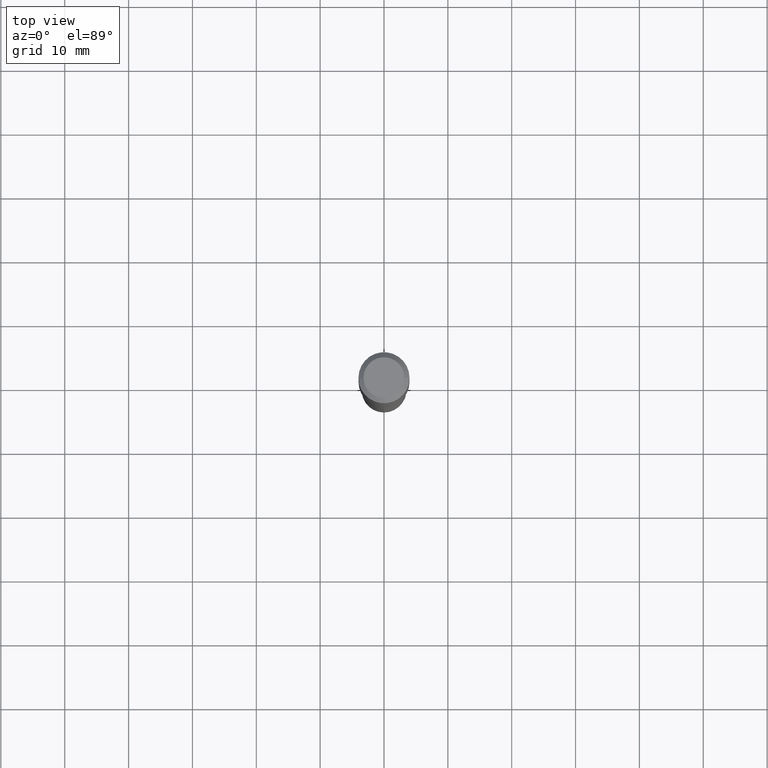
[diagram: clean part render]
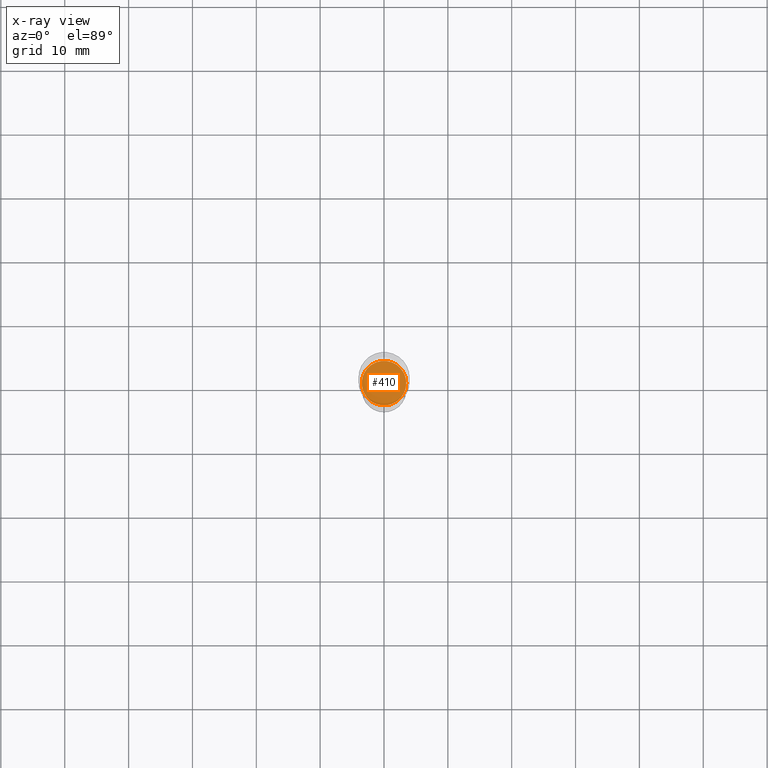
[diagram: x-ray — body ghosted, one internal face saturated and labeled with its STEP entity id]
A machine part, top view, then the same camera in x-ray: the body is ghosted and one INTERNAL B-rep face — a face not visible from any outside direction — is saturated and labeled: STEP entity #410.
In plain terms, the highlighted planar face has unit normal (-0, 0, 1).
Its self-contained STEP definition (entity closure, byte-faithful):
#51 = PLANE ( 'NONE',  #365 ) ;
#67 = CARTESIAN_POINT ( 'NONE',  ( 4.813905344975441835E-29, -6.872981015512731707E-15, -1.968500000000000139 ) ) ;
#124 = ORIENTED_EDGE ( 'NONE', *, *, #258, .F. ) ;
#159 = CARTESIAN_POINT ( 'NONE',  ( -0.1373000000000000054, -5.894756612140003899E-15, -1.968500000000000139 ) ) ;
#201 = AXIS2_PLACEMENT_3D ( 'NONE', #252, #371, #333 ) ;
#227 = CIRCLE ( 'NONE', #201, 0.1373000000000000054 ) ;
#252 = CARTESIAN_POINT ( 'NONE',  ( 4.813905344975441835E-29, -6.872981015512731707E-15, -1.968500000000000139 ) ) ;
#258 = EDGE_CURVE ( 'NONE', #312, #391, #227, .T. ) ;
#267 = EDGE_LOOP ( 'NONE', ( #418, #124 ) ) ;
#274 = FACE_OUTER_BOUND ( 'NONE', #267, .T. ) ;
#295 = EDGE_CURVE ( 'NONE', #391, #312, #355, .T. ) ;
#311 = CARTESIAN_POINT ( 'NONE',  ( -6.561425494807725945E-30, -1.470640093616546304E-14, -1.968499999999999694 ) ) ;
#312 = VERTEX_POINT ( 'NONE', #159 ) ;
#333 = DIRECTION ( 'NONE',  ( 1.000000000000000000, -6.982962677686262766E-15, 0.000000000000000000 ) ) ;
#335 = DIRECTION ( 'NONE',  ( -2.445468806185136597E-29, 3.491481338843145583E-15, 1.000000000000000000 ) ) ;
#355 = CIRCLE ( 'NONE', #401, 0.1373000000000000054 ) ;
#360 = DIRECTION ( 'NONE',  ( -2.438088387897960049E-29, 3.491481338843145188E-15, 1.000000000000000000 ) ) ;
#365 = AXIS2_PLACEMENT_3D ( 'NONE', #311, #360, #463 ) ;
#371 = DIRECTION ( 'NONE',  ( -2.445468806185136597E-29, 3.491481338843145583E-15, 1.000000000000000000 ) ) ;
#391 = VERTEX_POINT ( 'NONE', #466 ) ;
#401 = AXIS2_PLACEMENT_3D ( 'NONE', #67, #335, #490 ) ;
#410 = ADVANCED_FACE ( 'NONE', ( #274 ), #51, .F. ) ;
#418 = ORIENTED_EDGE ( 'NONE', *, *, #295, .F. ) ;
#463 = DIRECTION ( 'NONE',  ( 1.000000000000000000, -6.982962677686265922E-15, 4.876176775795935793E-29 ) ) ;
#466 = CARTESIAN_POINT ( 'NONE',  ( 0.1373000000000000054, -7.831741791159056177E-15, -1.968500000000000139 ) ) ;
#490 = DIRECTION ( 'NONE',  ( 1.000000000000000000, -6.982962677686262766E-15, 0.000000000000000000 ) ) ;